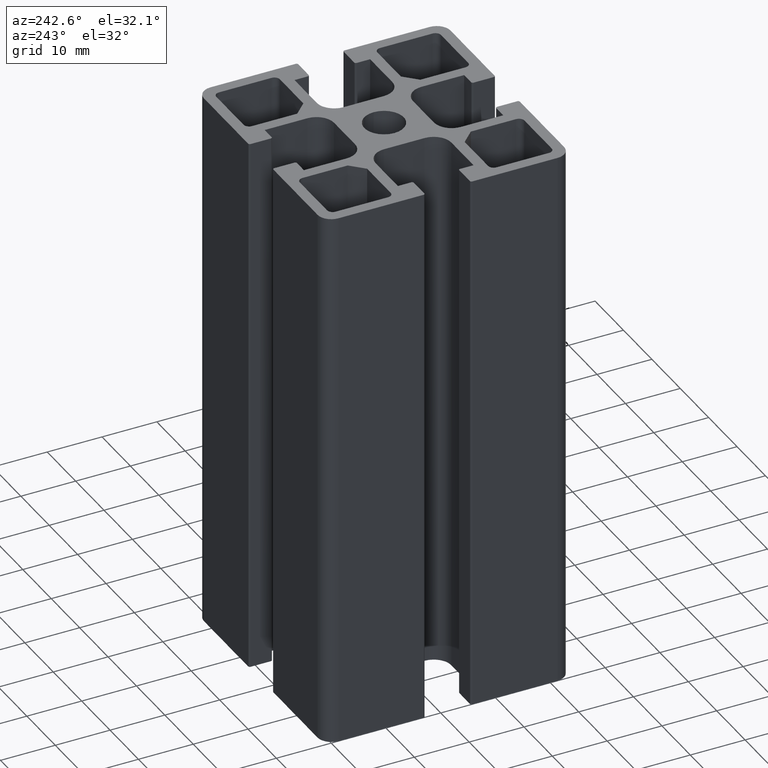
[diagram: clean part render]
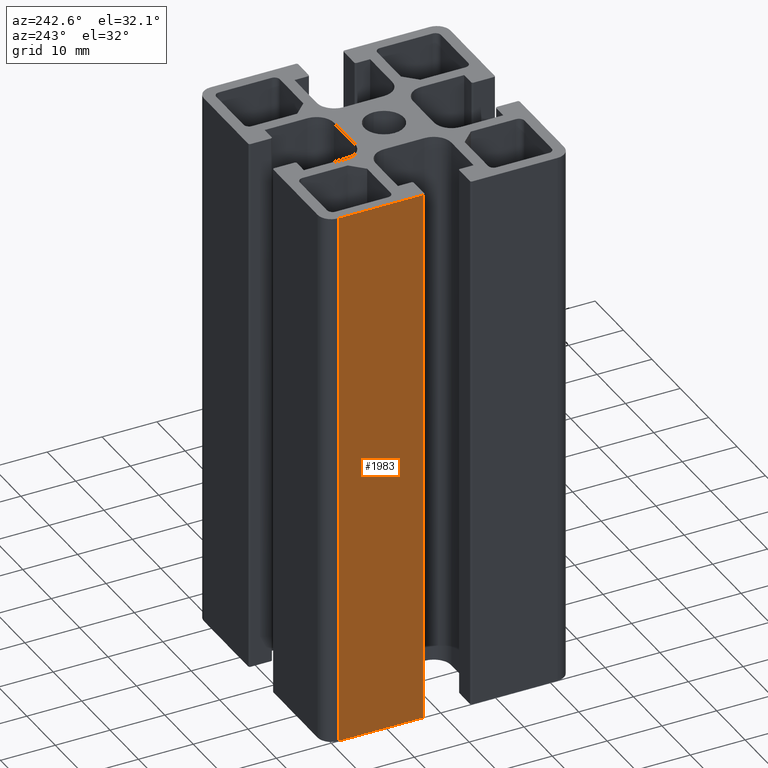
[diagram: same view with one face highlighted and labeled with its STEP entity id]
A machine part, auxiliary view. The second image highlights one B-rep face of the part: STEP entity #1983.
In plain terms, the highlighted planar face has unit normal (-1, 0, 0).
Its self-contained STEP definition (entity closure, byte-faithful):
#236=FACE_OUTER_BOUND('',#336,.T.);
#336=EDGE_LOOP('',(#1604,#1605,#1606,#1607));
#483=LINE('',#3105,#691);
#548=LINE('',#3286,#756);
#549=LINE('',#3288,#757);
#550=LINE('',#3289,#758);
#691=VECTOR('',#2519,100.);
#756=VECTOR('',#2694,15.55);
#757=VECTOR('',#2695,100.);
#758=VECTOR('',#2696,15.55);
#894=VERTEX_POINT('',#3102);
#895=VERTEX_POINT('',#3104);
#956=VERTEX_POINT('',#3285);
#957=VERTEX_POINT('',#3287);
#1142=EDGE_CURVE('',#894,#895,#483,.T.);
#1232=EDGE_CURVE('',#894,#956,#548,.T.);
#1233=EDGE_CURVE('',#957,#956,#549,.T.);
#1234=EDGE_CURVE('',#895,#957,#550,.T.);
#1604=ORIENTED_EDGE('',*,*,#1142,.F.);
#1605=ORIENTED_EDGE('',*,*,#1232,.T.);
#1606=ORIENTED_EDGE('',*,*,#1233,.F.);
#1607=ORIENTED_EDGE('',*,*,#1234,.F.);
#1888=PLANE('',#2158);
#1983=ADVANCED_FACE('',(#236),#1888,.T.);
#2158=AXIS2_PLACEMENT_3D('',#3284,#2692,#2693);
#2519=DIRECTION('',(0.,0.,-1.));
#2692=DIRECTION('center_axis',(-1.,2.22044604925031E-16,0.));
#2693=DIRECTION('ref_axis',(-3.5527136788005E-16,-1.,0.));
#2694=DIRECTION('',(2.22044604925031E-16,1.,0.));
#2695=DIRECTION('',(0.,0.,1.));
#2696=DIRECTION('',(2.22044604925031E-16,1.,0.));
#3102=CARTESIAN_POINT('',(-22.5,4.45000000000001,100.));
#3104=CARTESIAN_POINT('',(-22.5,4.45000000000001,0.));
#3105=CARTESIAN_POINT('',(-22.5,4.45000000000001,0.));
#3284=CARTESIAN_POINT('Origin',(-22.5,20.,0.));
#3285=CARTESIAN_POINT('',(-22.5,20.,100.));
#3286=CARTESIAN_POINT('',(-22.5,10.,100.));
#3287=CARTESIAN_POINT('',(-22.5,20.,0.));
#3288=CARTESIAN_POINT('',(-22.5,20.,0.));
#3289=CARTESIAN_POINT('',(-22.5,10.,0.));